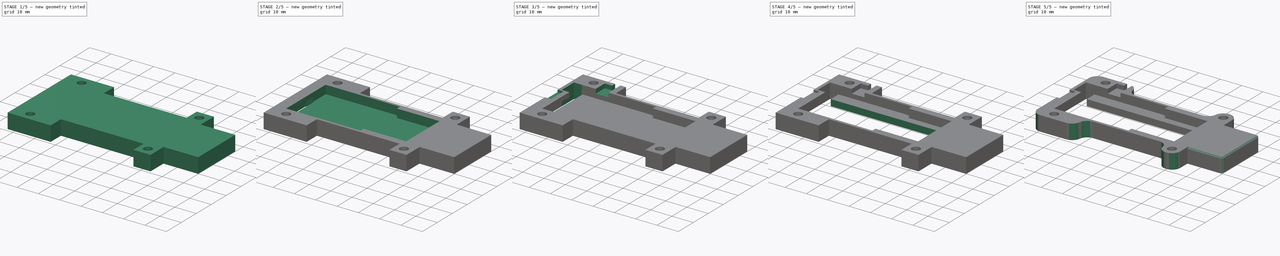
[diagram: build sequence overview — one tinted view per stage of 5, left to right]
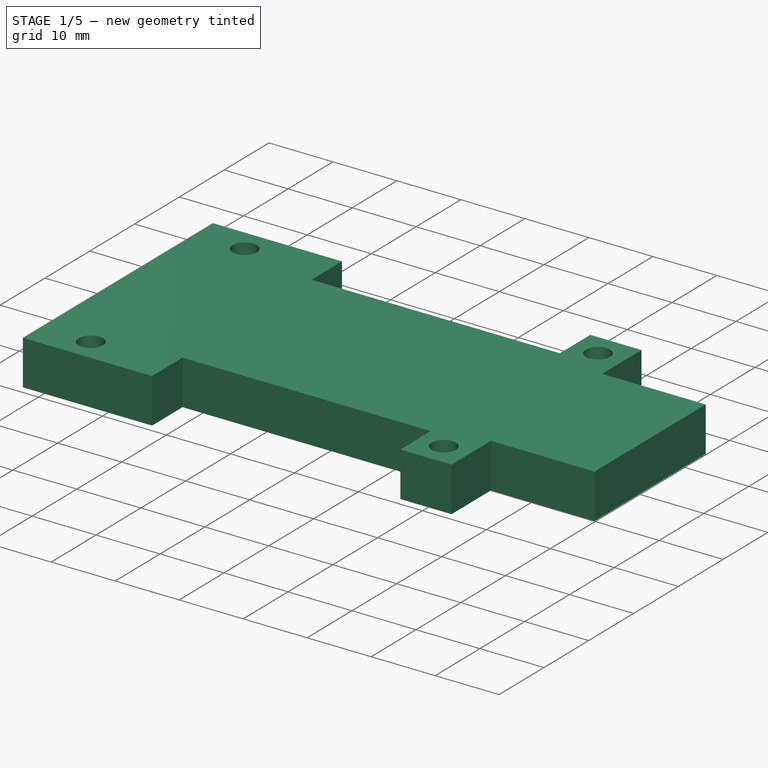
[diagram: stage 1 of 5 — iso view after this stage's code; geometry added in this stage tinted green]
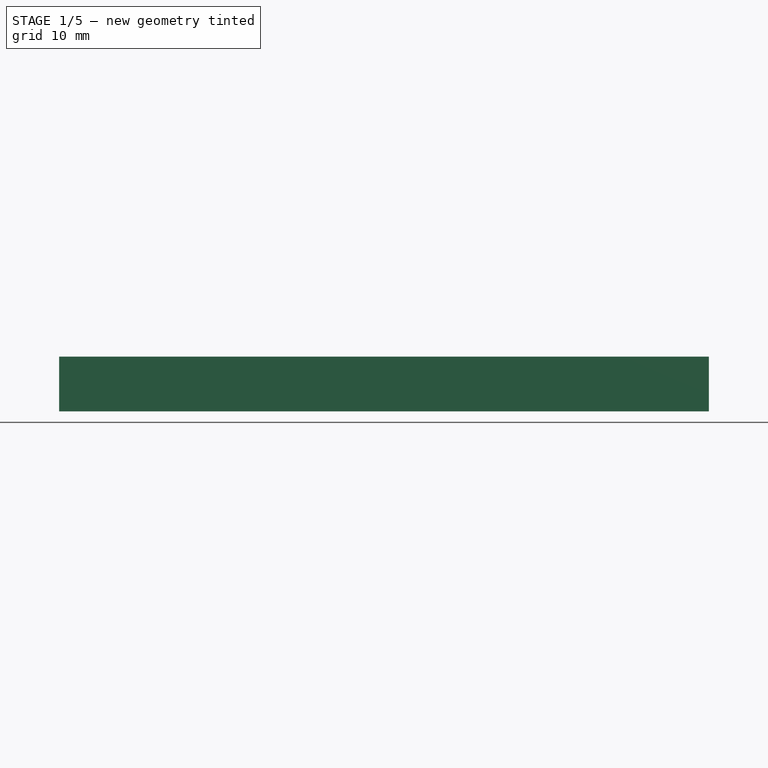
[diagram: stage 1 of 5 — front view after this stage's code; geometry added in this stage tinted green]
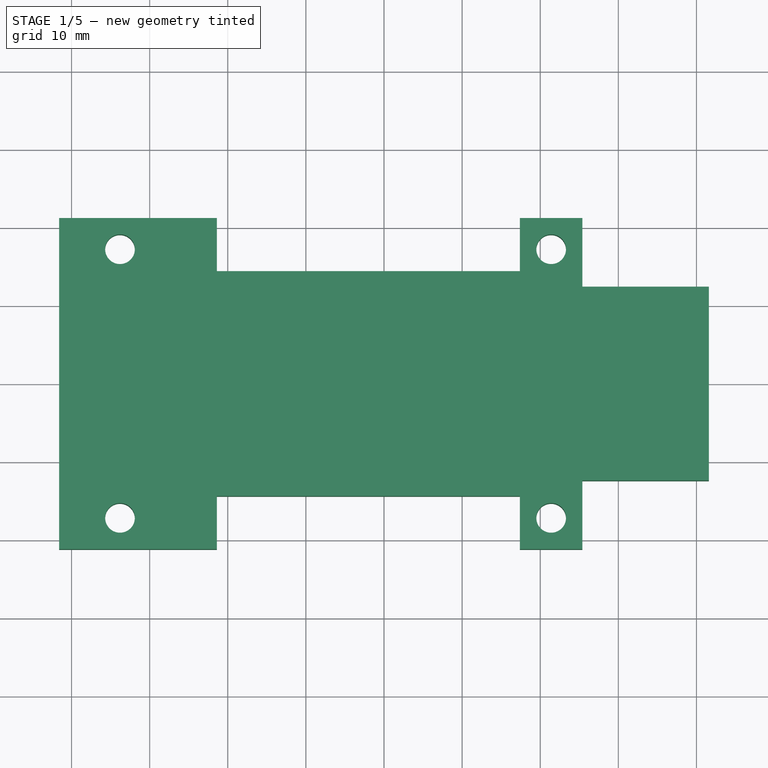
[diagram: stage 1 of 5 — top view after this stage's code; geometry added in this stage tinted green]
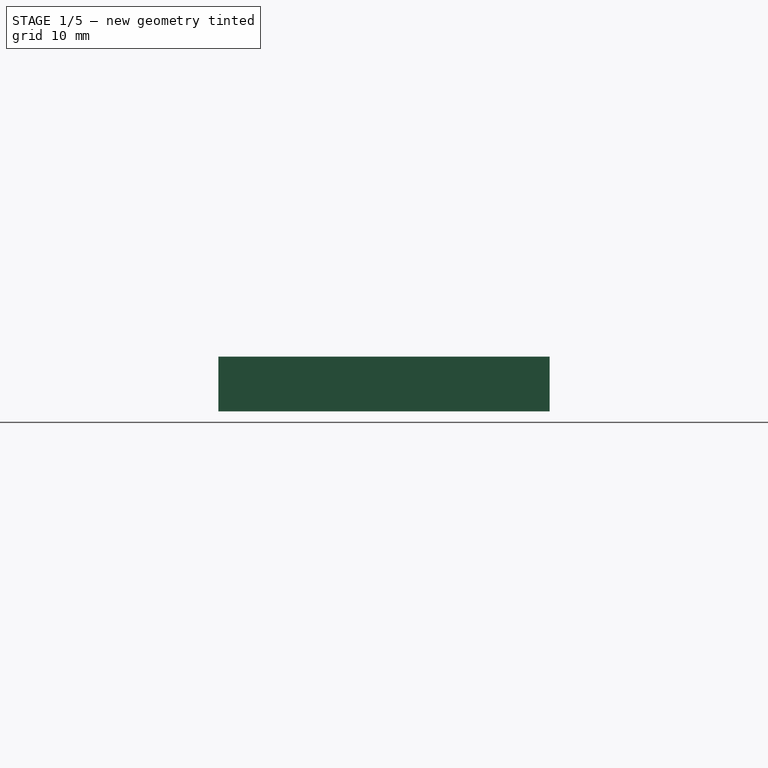
[diagram: stage 1 of 5 — right view after this stage's code; geometry added in this stage tinted green]
FCSTD DOCUMENT  (FreeCAD 0.21R33668 +26 (Git))
Label: spacerPlateV1.0
License: All rights reserved
LicenseURL: https://en.wikipedia.org/wiki/All_rights_reserved
objects: Sketcher::SketchObject×13, PartDesign::Pocket×9, PartDesign::Fillet×3, PartDesign::Plane×2, PartDesign::Chamfer×2, PartDesign::Pad×1, PartDesign::Body×1
note: 46 computed .brp shape members not serialized (recipe doc carries the construction recipe); baked Part::Feature solids carry a one-line shape summary decoded from their .brp

FEATURE [Sketcher::SketchObject] Sketch001
  FullyConstrained = true
  MapMode = 5
  Support = -> [XY_Plane]
  sketch-geometry (4):
    g0: LineSegment StartX=41.6 StartY=21.2 StartZ=0 EndX=-41.6 EndY=21.2 EndZ=0
    g1: LineSegment StartX=-41.6 StartY=21.2 StartZ=0 EndX=-41.6 EndY=-21.2 EndZ=0
    g2: LineSegment StartX=-41.6 StartY=-21.2 StartZ=0 EndX=41.6 EndY=-21.2 EndZ=0
    g3: LineSegment StartX=41.6 StartY=-21.2 StartZ=0 EndX=41.6 EndY=21.2 EndZ=0
  constraints (12):
    c: Coincident(g0,g1)
    c: Coincident(g1,g2)
    c: Coincident(g2,g3)
    c: Coincident(g3,g0)
    c: Horizontal(g0)
    c: Horizontal(g2)
    c: Vertical(g1)
    c: Vertical(g3)
    c: Distance(g2) = 83.2
    c: Distance(g3) = 42.4
    c: DistanceX(g-1,g2) = 41.6
    c: DistanceY(g-1,g0) = 21.2
FEATURE [PartDesign::Pad] Pad
  Direction = (0,0,1)
  Length = 7
  Length2 = 10
  Profile = -> Sketch001
  ReferenceAxis = -> Sketch001 [N_Axis]
  Type = 0
FEATURE [PartDesign::Plane] DatumPlane
  Length = 96.0996
  MapMode = 5
  Placement = pos=(0,0,7) rot=(0,0,1;0rad)
  ResizeMode = 0
  Support = -> [Pad]
  Width = 62.8996
FEATURE [Sketcher::SketchObject] Sketch002
  FullyConstrained = true
  MapMode = 5
  Placement = pos=(0,0,7) rot=(0,0,1;0rad)
  Support = -> [DatumPlane]
  sketch-geometry (4):
    g0: Circle CenterX=-33.8 CenterY=17.2 CenterZ=0 NormalX=0 NormalY=0 NormalZ=1 AngleXU=0 Radius=1.9
    g1: Circle CenterX=-33.8 CenterY=-17.2 CenterZ=0 NormalX=0 NormalY=0 NormalZ=1 AngleXU=0 Radius=1.9
    g2: Circle CenterX=21.4 CenterY=17.2 CenterZ=0 NormalX=0 NormalY=0 NormalZ=1 AngleXU=0 Radius=1.9
    g3: Circle CenterX=21.4 CenterY=-17.2 CenterZ=0 NormalX=0 NormalY=0 NormalZ=1 AngleXU=0 Radius=1.9
  constraints (10):
    c: DistanceX(g0,g-1) = 33.8
    c: DistanceX(g0,g2) = 55.2
    c: Diameter(g0) = 3.8
    c: DistanceY(g-1,g0) = 17.2
    c: Symmetric(g0,g1,g-1)
    c: Horizontal(g0,g2)
    c: Symmetric(g2,g3,g-1)
    c: Equal(g0,g1)
    c: Equal(g0,g2)
    c: Equal(g0,g3)
FEATURE [PartDesign::Pocket] Pocket
  BaseFeature = -> Pad
  Direction = (0,0,-1)
  Length = 0
  Length2 = 5
  Profile = -> Sketch002
  ReferenceAxis = -> Sketch002 [N_Axis]
  Type = 3
  UpToFace = -> Pad [Face5]
FEATURE [Sketcher::SketchObject] Sketch003
  FullyConstrained = true
  MapMode = 5
  Placement = pos=(0,0,7) rot=(0,0,1;0rad)
  Support = -> [DatumPlane]
  sketch-geometry (16):
    g0: LineSegment StartX=-21.4 StartY=21.2 StartZ=0 EndX=17.4 EndY=21.2 EndZ=0
    g1: LineSegment StartX=17.4 StartY=21.2 StartZ=0 EndX=17.4 EndY=14.4 EndZ=0
    g2: LineSegment StartX=17.4 StartY=14.4 StartZ=0 EndX=-21.4 EndY=14.4 EndZ=0
    g3: LineSegment StartX=-21.4 StartY=14.4 StartZ=0 EndX=-21.4 EndY=21.2 EndZ=0
    g4: LineSegment StartX=-21.4 StartY=-14.4 StartZ=0 EndX=17.4 EndY=-14.4 EndZ=0
    g5: LineSegment StartX=17.4 StartY=-14.4 StartZ=0 EndX=17.4 EndY=-21.2 EndZ=0
    g6: LineSegment StartX=17.4 StartY=-21.2 StartZ=0 EndX=-21.4 EndY=-21.2 EndZ=0
    g7: LineSegment StartX=-21.4 StartY=-21.2 StartZ=0 EndX=-21.4 EndY=-14.4 EndZ=0
    g8: LineSegment StartX=25.4 StartY=-12.4 StartZ=0 EndX=41.6 EndY=-12.4 EndZ=0
    g9: LineSegment StartX=41.6 StartY=-12.4 StartZ=0 EndX=41.6 EndY=-21.2 EndZ=0
    g10: LineSegment StartX=41.6 StartY=-21.2 StartZ=0 EndX=25.4 EndY=-21.2 EndZ=0
    g11: LineSegment StartX=25.4 StartY=-21.2 StartZ=0 EndX=25.4 EndY=-12.4 EndZ=0
    g12: LineSegment StartX=25.4 StartY=12.4 StartZ=0 EndX=41.6 EndY=12.4 EndZ=0
    g13: LineSegment StartX=41.6 StartY=12.4 StartZ=0 EndX=41.6 EndY=21.2 EndZ=0
    g14: LineSegment StartX=41.6 StartY=21.2 StartZ=0 EndX=25.4 EndY=21.2 EndZ=0
    g15: LineSegment StartX=25.4 StartY=21.2 StartZ=0 EndX=25.4 EndY=12.4 EndZ=0
  constraints (48):
    c: Coincident(g0,g1)
    c: Coincident(g1,g2)
    c: Coincident(g2,g3)
    c: Coincident(g3,g0)
    c: Horizontal(g0)
    c: Horizontal(g2)
    c: Vertical(g1)
    c: Vertical(g3)
    c: Coincident(g4,g5)
    c: Coincident(g5,g6)
    c: Coincident(g6,g7)
    c: Coincident(g7,g4)
    c: Horizontal(g4)
    c: Horizontal(g6)
    c: Vertical(g5)
    c: Vertical(g7)
    c: Coincident(g8,g9)
    c: Coincident(g9,g10)
    c: Coincident(g10,g11)
    c: Coincident(g11,g8)
    c: Horizontal(g8)
    c: Horizontal(g10)
    c: Vertical(g9)
    c: Vertical(g11)
    c: Coincident(g12,g13)
    c: Coincident(g13,g14)
    c: Coincident(g14,g15)
    c: Coincident(g15,g12)
    c: Horizontal(g12)
    c: Horizontal(g14)
    c: Vertical(g13)
    c: Vertical(g15)
    c: Distance(g3) = 6.8
    c: Distance(g13) = 8.8
    c: Equal(g13,g9)
    c: Equal(g3,g7)
    c: Distance(g12) = 16.2
    c: DistanceY(g-1,g2) = 14.4
    c: DistanceY(g4,g-1) = 14.4
    c: Distance(g2) = 38.8
    c: Equal(g4,g2)
    c: DistanceX(g2,g-1) = 21.4
    c: Vertical(g2,g4)
    c: DistanceX(g-1,g12) = 25.4
    c: Horizontal(g0,g14)
    c: Horizontal(g5,g10)
    c: Equal(g12,g8)
    c: Vertical(g8,g12)
FEATURE [PartDesign::Pocket] Pocket001
  BaseFeature = -> Pocket
  Direction = (0,0,-1)
  Length = 0
  Length2 = 5
  Profile = -> Sketch003
  ReferenceAxis = -> Sketch003 [N_Axis]
  Type = 3
  UpToFace = -> Pocket [Face4]
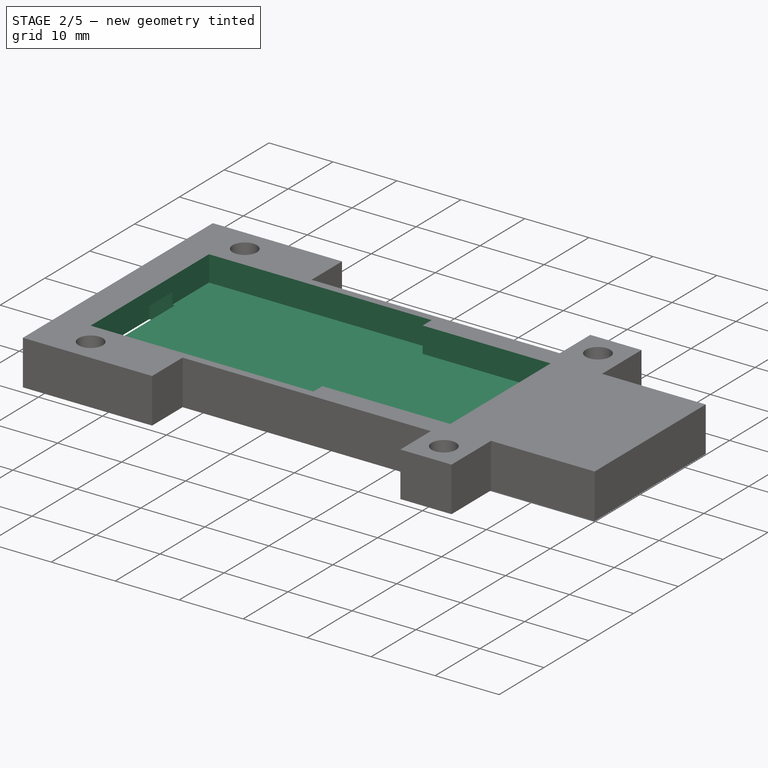
[diagram: stage 2 of 5 — iso view after this stage's code; geometry added in this stage tinted green]
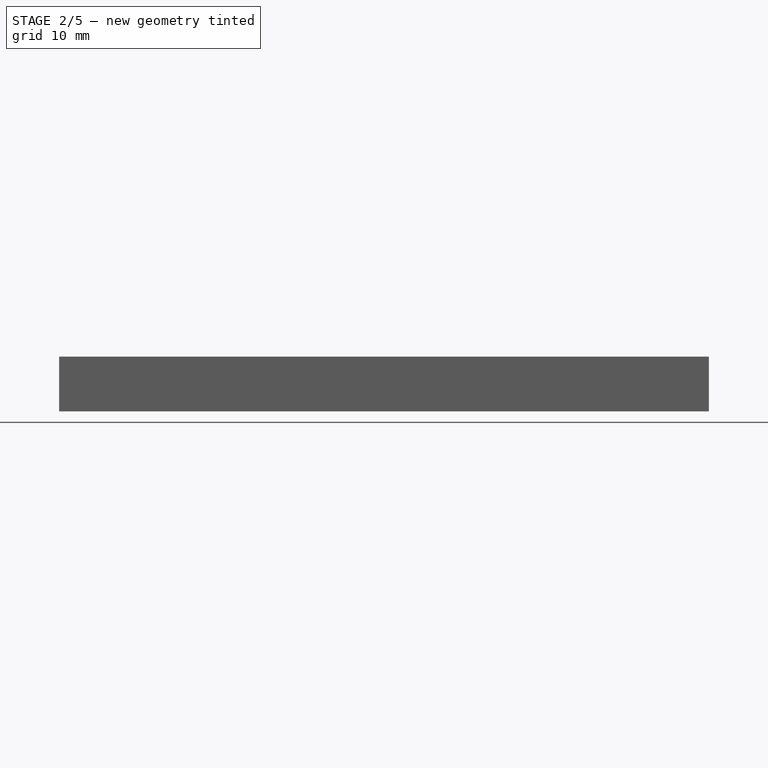
[diagram: stage 2 of 5 — front view after this stage's code; geometry added in this stage tinted green]
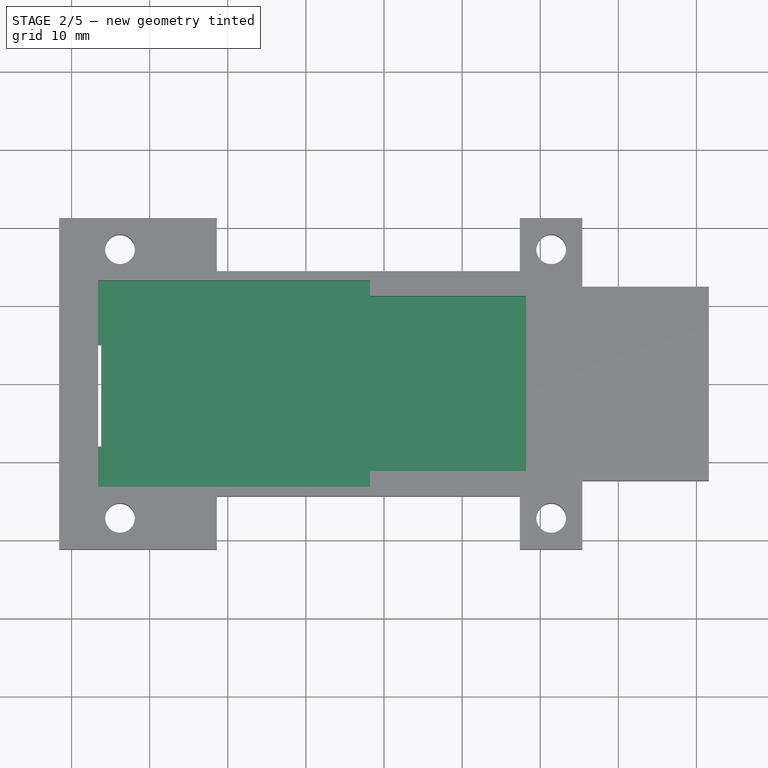
[diagram: stage 2 of 5 — top view after this stage's code; geometry added in this stage tinted green]
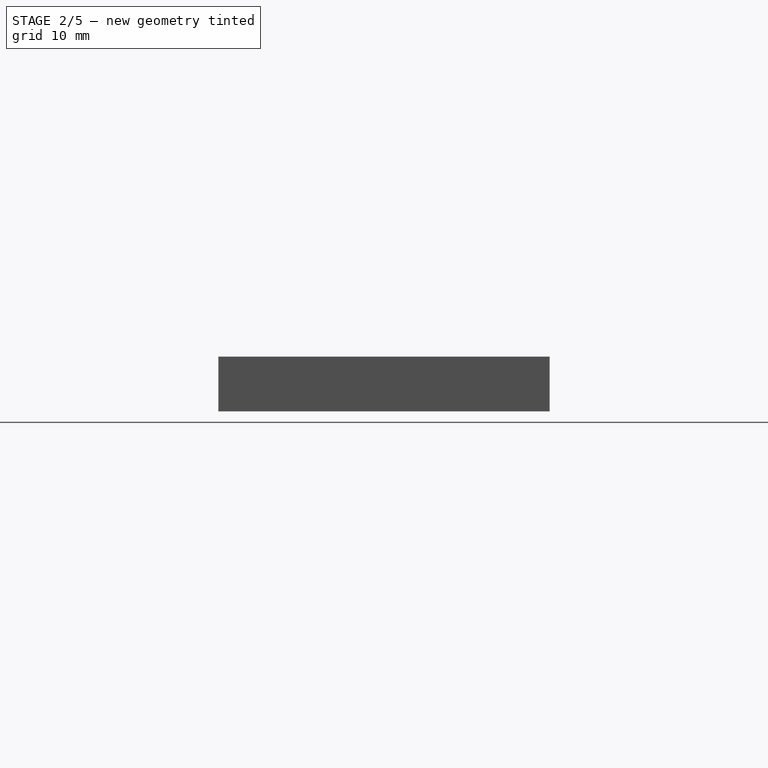
[diagram: stage 2 of 5 — right view after this stage's code; geometry added in this stage tinted green]
FEATURE [Sketcher::SketchObject] Sketch
  FullyConstrained = true
  MapMode = 5
  Support = -> [XY_Plane]
  sketch-geometry (25):
    g0: LineSegment StartX=41.6 StartY=-21.2 StartZ=0 EndX=41.6 EndY=21.2 EndZ=0
    g1: LineSegment StartX=41.6 StartY=21.2 StartZ=0 EndX=-41.6 EndY=21.2 EndZ=0
    g2: LineSegment StartX=-41.6 StartY=21.2 StartZ=0 EndX=-41.6 EndY=-21.2 EndZ=0
    g3: LineSegment StartX=-41.6 StartY=-21.2 StartZ=0 EndX=41.6 EndY=-21.2 EndZ=0
    g4: GeomPoint X=0 Y=0 Z=0
    g5: Circle CenterX=-33.8 CenterY=17.2 CenterZ=0 NormalX=0 NormalY=0 NormalZ=1 AngleXU=0 Radius=2.4
    g6: Circle CenterX=-33.8 CenterY=-17.2 CenterZ=0 NormalX=0 NormalY=0 NormalZ=1 AngleXU=0 Radius=2.4
    g7: Circle CenterX=21.4 CenterY=-17.2 CenterZ=0 NormalX=0 NormalY=0 NormalZ=1 AngleXU=0 Radius=2.4
    g8: Circle CenterX=21.4 CenterY=17.2 CenterZ=0 NormalX=0 NormalY=0 NormalZ=1 AngleXU=0 Radius=2.4
    g9: LineSegment StartX=-21.4 StartY=21.2 StartZ=0 EndX=17.4 EndY=21.2 EndZ=0
    g10: LineSegment StartX=17.4 StartY=21.2 StartZ=0 EndX=17.4 EndY=14.4 EndZ=0
    g11: LineSegment StartX=17.4 StartY=14.4 StartZ=0 EndX=-21.4 EndY=14.4 EndZ=0
    g12: LineSegment StartX=-21.4 StartY=14.4 StartZ=0 EndX=-21.4 EndY=21.2 EndZ=0
    g13: LineSegment StartX=-21.4 StartY=-21.2 StartZ=0 EndX=17.4 EndY=-21.2 EndZ=0
    g14: LineSegment StartX=17.4 StartY=-21.2 StartZ=0 EndX=17.4 EndY=-14.4 EndZ=0
    g15: LineSegment StartX=17.4 StartY=-14.4 StartZ=0 EndX=-21.4 EndY=-14.4 EndZ=0
    g16: LineSegment StartX=-21.4 StartY=-14.4 StartZ=0 EndX=-21.4 EndY=-21.2 EndZ=0
    g17: LineSegment StartX=41.6 StartY=21.2 StartZ=0 EndX=25.4 EndY=21.2 EndZ=0
    g18: LineSegment StartX=25.4 StartY=21.2 StartZ=0 EndX=25.4 EndY=14.4 EndZ=0
    g19: LineSegment StartX=25.4 StartY=14.4 StartZ=0 EndX=41.6 EndY=14.4 EndZ=0
    g20: LineSegment StartX=41.6 StartY=14.4 StartZ=0 EndX=41.6 EndY=21.2 EndZ=0
    g21: LineSegment StartX=41.6 StartY=-21.2 StartZ=0 EndX=25.4 EndY=-21.2 EndZ=0
    g22: LineSegment StartX=25.4 StartY=-21.2 StartZ=0 EndX=25.4 EndY=-14.4 EndZ=0
    g23: LineSegment StartX=25.4 StartY=-14.4 StartZ=0 EndX=41.6 EndY=-14.4 EndZ=0
    g24: LineSegment StartX=41.6 StartY=-14.4 StartZ=0 EndX=41.6 EndY=-21.2 EndZ=0
  constraints (69):
    c: Coincident(g0,g1)
    c: Coincident(g1,g2)
    c: Coincident(g2,g3)
    c: Coincident(g3,g0)
    c: Horizontal(g1)
    c: Horizontal(g3)
    c: Vertical(g0)
    c: Vertical(g2)
    c: Symmetric(g1,g0,g4)
    c: Coincident(g4,g-1)
    c: Distance(g1) = 83.2
    c: Distance(g2) = 42.4
    c: DistanceX(g1,g5) = 7.8
    c: DistanceY(g5,g1) = 4
    c: Diameter(g5) = 4.8
    c: Symmetric(g5,g6,g-1)
    c: Horizontal(g5,g8)
    c: Horizontal(g6,g7)
    c: Vertical(g8,g7)
    c: DistanceX(g5,g8) = 55.2
    c: Equal(g5,g6)
    c: Equal(g5,g8)
    c: Equal(g5,g7)
    c: Coincident(g9,g10)
    c: Coincident(g10,g11)
    c: Coincident(g11,g12)
    c: Coincident(g12,g9)
    c: Horizontal(g9)
    c: Horizontal(g11)
    c: Vertical(g10)
    c: Vertical(g12)
    c: PointOnObject(g9,g1)
    c: Coincident(g13,g14)
    c: Coincident(g14,g15)
    c: Coincident(g15,g16)
    c: Coincident(g16,g13)
    c: Horizontal(g13)
    c: Horizontal(g15)
    c: Vertical(g14)
    c: Vertical(g16)
    c: PointOnObject(g13,g3)
    c: Distance(g15) = 38.8
    c: Distance(g16) = 6.8
    c: Vertical(g11,g15)
    c: Equal(g16,g12)
    c: Equal(g15,g11)
    c: Coincident(g17,g18)
    c: Coincident(g18,g19)
    c: Coincident(g19,g20)
    c: Coincident(g20,g17)
    c: Horizontal(g17)
    c: Horizontal(g19)
    c: Vertical(g18)
    c: Vertical(g20)
    c: Coincident(g17,g0)
    c: Coincident(g21,g22)
    c: Coincident(g22,g23)
    c: Coincident(g23,g24)
    c: Coincident(g24,g21)
    c: Horizontal(g21)
    c: Horizontal(g23)
    c: Vertical(g22)
    c: Vertical(g24)
    c: Coincident(g21,g0)
    c: Distance(g19) = 16.2
    c: Distance(g18) = 6.8
    c: DistanceX(g15,g4) = 21.4
    c: Equal(g18,g22)
    c: Equal(g19,g23)
FEATURE [PartDesign::Plane] DatumPlane001
  Length = 96.0996
  MapMode = 5
  Placement = pos=(0,0,0) rot=(1,0,0;3.14159rad)
  ResizeMode = 0
  Support = -> [Pocket001]
  Width = 62.8996
FEATURE [Sketcher::SketchObject] Sketch004
  FullyConstrained = true
  MapMode = 5
  Placement = pos=(0,0,0) rot=(1,0,0;3.14159rad)
  Support = -> [DatumPlane001]
  sketch-geometry (4):
    g0: LineSegment StartX=18.2 StartY=8 StartZ=0 EndX=40.4 EndY=8 EndZ=0
    g1: LineSegment StartX=40.4 StartY=8 StartZ=0 EndX=40.4 EndY=-8 EndZ=0
    g2: LineSegment StartX=40.4 StartY=-8 StartZ=0 EndX=18.2 EndY=-8 EndZ=0
    g3: LineSegment StartX=18.2 StartY=-8 StartZ=0 EndX=18.2 EndY=8 EndZ=0
  constraints (12):
    c: Coincident(g0,g1)
    c: Coincident(g1,g2)
    c: Coincident(g2,g3)
    c: Coincident(g3,g0)
    c: Horizontal(g0)
    c: Horizontal(g2)
    c: Vertical(g1)
    c: Vertical(g3)
    c: Distance(g3) = 16
    c: Distance(g2) = 22.2
    c: DistanceX(g-1,g0) = 40.4
    c: DistanceY(g-1,g0) = 8
FEATURE [PartDesign::Pocket] Pocket002
  BaseFeature = -> Pocket001
  Direction = (0,0,1)
  Length = 5.8
  Length2 = 5
  Profile = -> Sketch004
  ReferenceAxis = -> Sketch004 [N_Axis]
  Type = 0
FEATURE [Sketcher::SketchObject] Sketch005
  FullyConstrained = true
  MapMode = 5
  Placement = pos=(0,0,0) rot=(1,0,0;3.14159rad)
  Support = -> [DatumPlane001]
  sketch-geometry (5):
    g0: LineSegment StartX=-36.2 StartY=-5 StartZ=0 EndX=-36.2 EndY=8 EndZ=0
    g1: LineSegment StartX=-36.2 StartY=8 StartZ=0 EndX=-40.2 EndY=8 EndZ=0
    g2: LineSegment StartX=-40.2 StartY=8 StartZ=0 EndX=-40.2 EndY=-5 EndZ=0
    g3: LineSegment StartX=-40.2 StartY=-5 StartZ=0 EndX=-36.2 EndY=-5 EndZ=0
    g4: GeomPoint X=-38.2 Y=1.5 Z=0
  constraints (13):
    c: Coincident(g0,g1)
    c: Coincident(g1,g2)
    c: Coincident(g2,g3)
    c: Coincident(g3,g0)
    c: Horizontal(g1)
    c: Horizontal(g3)
    c: Vertical(g0)
    c: Vertical(g2)
    c: Symmetric(g1,g0,g4)
    c: DistanceX(g0,g-1) = 36.2
    c: Distance(g1) = 4
    c: DistanceY(g-1,g0) = 8
    c: DistanceY(g2,g-1) = 5
FEATURE [PartDesign::Pocket] Pocket003
  BaseFeature = -> Pocket002
  Direction = (0,0,1)
  Length = 4.8
  Length2 = 5
  Profile = -> Sketch005
  ReferenceAxis = -> Sketch005 [N_Axis]
  Type = 0
FEATURE [Sketcher::SketchObject] Sketch006
  FullyConstrained = true
  MapMode = 5
  Placement = pos=(0,0,7) rot=(0,0,1;0rad)
  Support = -> [DatumPlane]
  sketch-geometry (14):
    g0: GeomPoint X=-36.6 Y=13.2 Z=0
    g1: GeomPoint X=-1.8 Y=13.2 Z=0
    g2: GeomPoint X=-1.8 Y=11.2 Z=0
    g3: GeomPoint X=18.2 Y=11.2 Z=0
    g4: GeomPoint X=-1.8 Y=-11.2 Z=0
    g5: GeomPoint X=-36.6 Y=-13.2 Z=0
    g6: LineSegment StartX=-36.6 StartY=13.2 StartZ=0 EndX=-1.8 EndY=13.2 EndZ=0
    g7: LineSegment StartX=-1.8 StartY=13.2 StartZ=0 EndX=-1.8 EndY=11.2 EndZ=0
    g8: LineSegment StartX=-1.8 StartY=11.2 StartZ=0 EndX=18.2 EndY=11.2 EndZ=0
    g9: LineSegment StartX=18.2 StartY=-11.2 StartZ=0 EndX=-1.8 EndY=-11.2 EndZ=0
    g10: LineSegment StartX=-1.8 StartY=-13.2 StartZ=0 EndX=-36.6 EndY=-13.2 EndZ=0
    g11: LineSegment StartX=-36.6 StartY=-13.2 StartZ=0 EndX=-36.6 EndY=13.2 EndZ=0
    g12: LineSegment StartX=-1.8 StartY=-11.2 StartZ=0 EndX=-1.8 EndY=-13.2 EndZ=0
    g13: LineSegment StartX=18.2 StartY=11.2 StartZ=0 EndX=18.2 EndY=-11.2 EndZ=0
  constraints (30):
    c: Coincident(g6,g0)
    c: Coincident(g6,g1)
    c: Horizontal(g6)
    c: Coincident(g7,g6)
    c: Coincident(g7,g2)
    c: Vertical(g7)
    c: Coincident(g8,g7)
    c: Coincident(g8,g3)
    c: Horizontal(g8)
    c: Coincident(g9,g4)
    c: Horizontal(g9)
    c: Coincident(g10,g5)
    c: Horizontal(g10)
    c: Coincident(g11,g10)
    c: Coincident(g11,g6)
    c: Vertical(g11)
    c: Distance(g6) = 34.8
    c: Equal(g6,g10)
    c: Coincident(g12,g9)
    c: Coincident(g12,g10)
    c: Vertical(g12)
    c: Coincident(g13,g8)
    c: Coincident(g13,g9)
    c: Vertical(g13)
    c: Distance(g11) = 26.4
    c: Distance(g13) = 22.4
    c: Equal(g12,g7)
    c: Distance(g8) = 20
    c: DistanceX(g10,g-1) = 36.6
    c: DistanceY(g9,g-1) = 11.2
FEATURE [PartDesign::Pocket] Pocket004
  BaseFeature = -> Pocket003
  Direction = (0,0,-1)
  Length = 4
  Length2 = 5
  Profile = -> Sketch006
  ReferenceAxis = -> Sketch006 [N_Axis]
  Type = 0
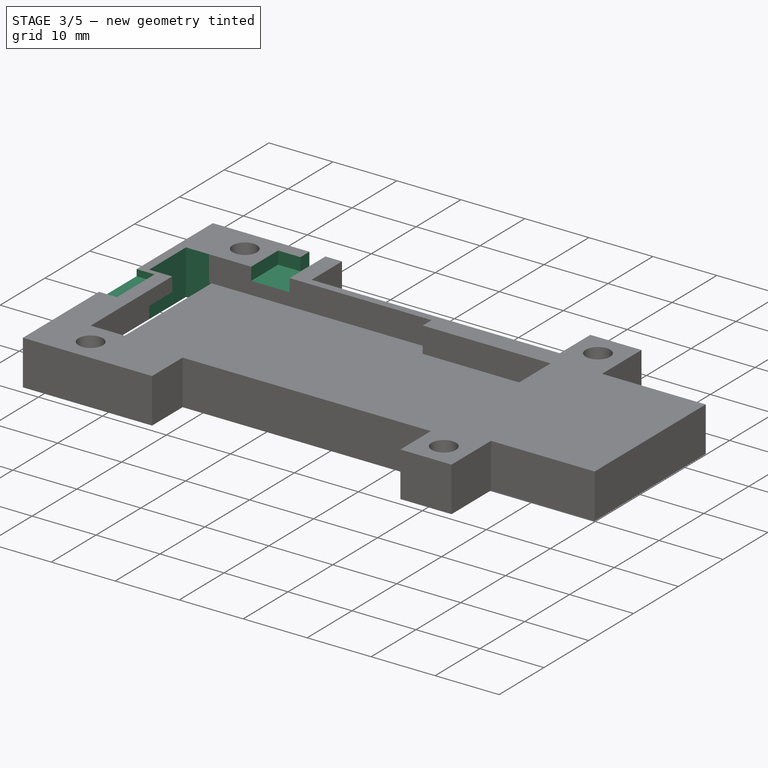
[diagram: stage 3 of 5 — iso view after this stage's code; geometry added in this stage tinted green]
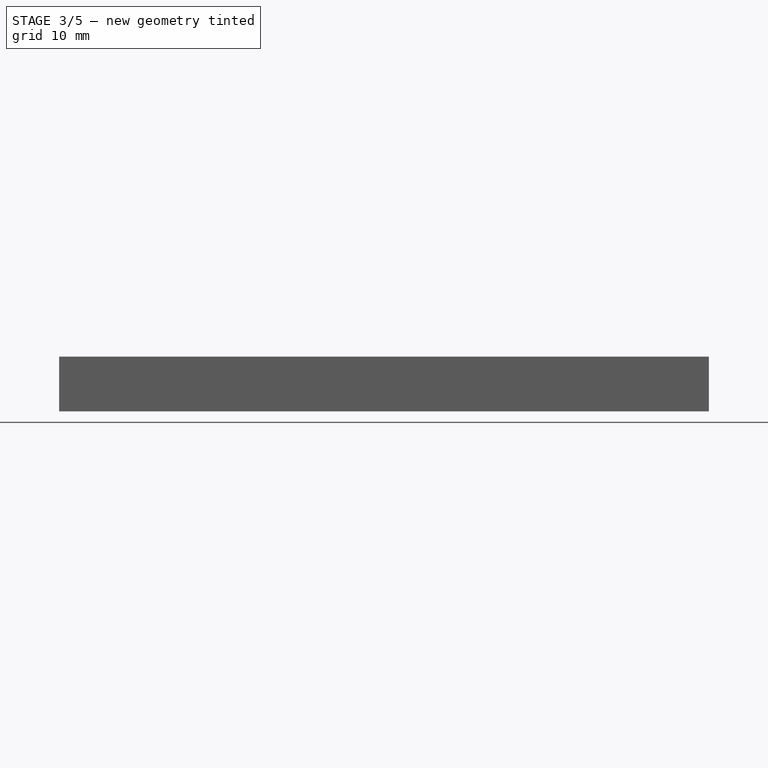
[diagram: stage 3 of 5 — front view after this stage's code; geometry added in this stage tinted green]
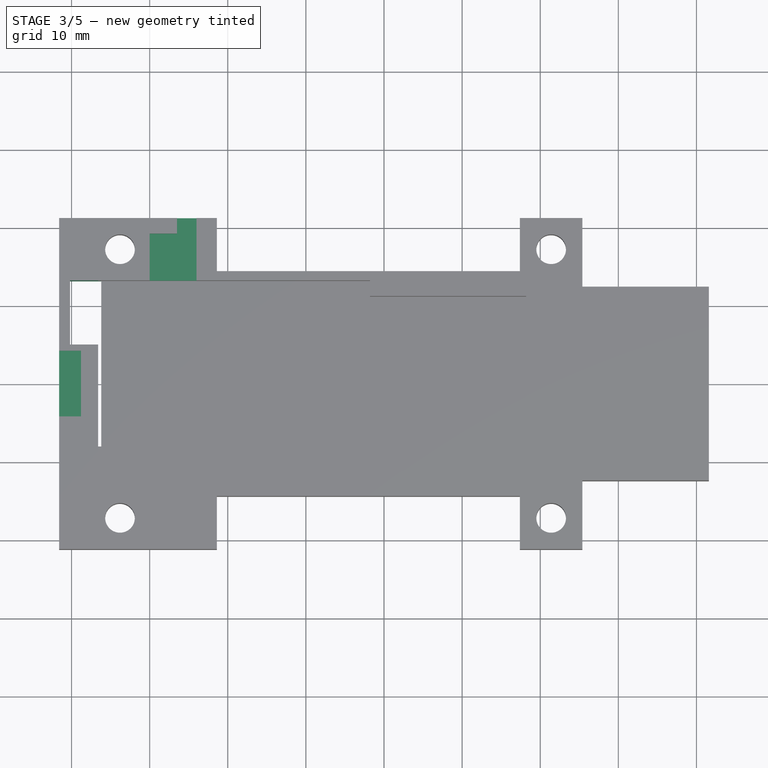
[diagram: stage 3 of 5 — top view after this stage's code; geometry added in this stage tinted green]
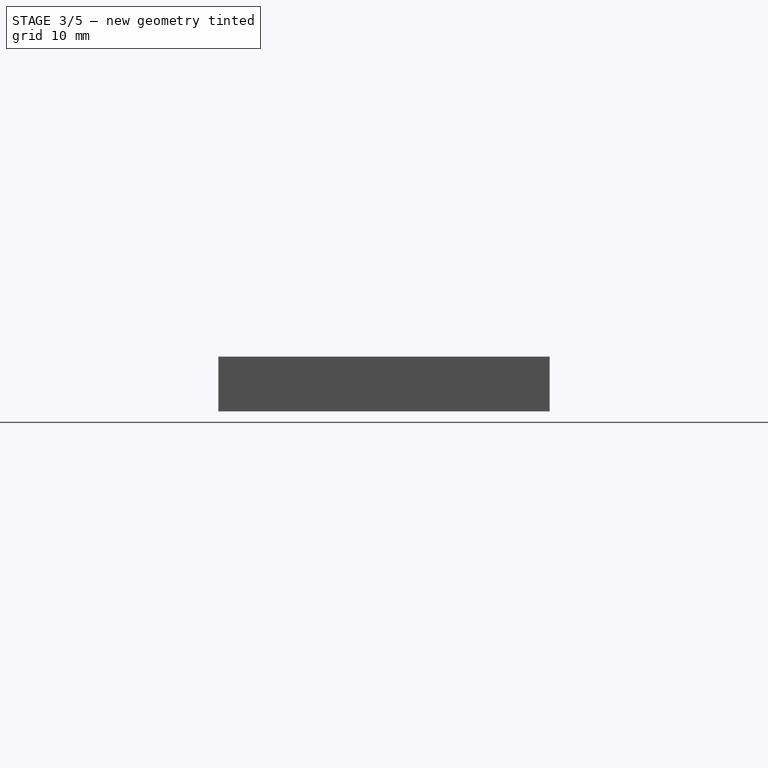
[diagram: stage 3 of 5 — right view after this stage's code; geometry added in this stage tinted green]
FEATURE [Sketcher::SketchObject] Sketch007
  FullyConstrained = true
  MapMode = 5
  Placement = pos=(0,0,7) rot=(0,0,1;0rad)
  Support = -> [Pocket004]
  sketch-geometry (4):
    g0: LineSegment StartX=41.6 StartY=12.4 StartZ=0 EndX=25.4 EndY=12.4 EndZ=0
    g1: LineSegment StartX=25.4 StartY=12.4 StartZ=0 EndX=25.4 EndY=-12.4 EndZ=0
    g2: LineSegment StartX=25.4 StartY=-12.4 StartZ=0 EndX=41.6 EndY=-12.4 EndZ=0
    g3: LineSegment StartX=41.6 StartY=-12.4 StartZ=0 EndX=41.6 EndY=12.4 EndZ=0
  constraints (12):
    c: Coincident(g0,g1)
    c: Coincident(g1,g2)
    c: Coincident(g2,g3)
    c: Coincident(g3,g0)
    c: Horizontal(g0)
    c: Horizontal(g2)
    c: Vertical(g1)
    c: Vertical(g3)
    c: DistanceX(g-1,g1) = 25.4
    c: Distance(g2) = 16.2
    c: DistanceY(g-1,g0) = 12.4
    c: Distance(g3) = 24.8
FEATURE [Sketcher::SketchObject] Sketch008
  FullyConstrained = true
  MapMode = 5
  Placement = pos=(0,0,0) rot=(1,0,0;3.14159rad)
  Support = -> [DatumPlane001]
  sketch-geometry (4):
    g0: LineSegment StartX=-40.2 StartY=-13.2 StartZ=0 EndX=-36.2 EndY=-13.2 EndZ=0
    g1: LineSegment StartX=-36.2 StartY=-13.2 StartZ=0 EndX=-36.2 EndY=-5 EndZ=0
    g2: LineSegment StartX=-36.2 StartY=-5 StartZ=0 EndX=-40.2 EndY=-5 EndZ=0
    g3: LineSegment StartX=-40.2 StartY=-5 StartZ=0 EndX=-40.2 EndY=-13.2 EndZ=0
  constraints (12):
    c: Coincident(g0,g1)
    c: Coincident(g1,g2)
    c: Coincident(g2,g3)
    c: Coincident(g3,g0)
    c: Horizontal(g0)
    c: Horizontal(g2)
    c: Vertical(g1)
    c: Vertical(g3)
    c: Distance(g0) = 4
    c: DistanceX(g1,g-1) = 36.2
    c: DistanceY(g0,g-1) = 13.2
    c: DistanceY(g1,g-1) = 5
FEATURE [PartDesign::Pocket] Pocket006
  BaseFeature = -> Pocket004
  Direction = (0,0,1)
  Length = 0
  Length2 = 5
  Profile = -> Sketch008
  ReferenceAxis = -> Sketch008 [N_Axis]
  Type = 3
  UpToFace = -> Pocket004 [Face4]
FEATURE [Sketcher::SketchObject] Sketch009
  FullyConstrained = true
  MapMode = 5
  Placement = pos=(0,0,7) rot=(0,0,1;0rad)
  Support = -> [DatumPlane]
  sketch-geometry (4):
    g0: LineSegment StartX=-41.6 StartY=4.2 StartZ=0 EndX=-38.8 EndY=4.2 EndZ=0
    g1: LineSegment StartX=-38.8 StartY=4.2 StartZ=0 EndX=-38.8 EndY=-4.2 EndZ=0
    g2: LineSegment StartX=-38.8 StartY=-4.2 StartZ=0 EndX=-41.6 EndY=-4.2 EndZ=0
    g3: LineSegment StartX=-41.6 StartY=-4.2 StartZ=0 EndX=-41.6 EndY=4.2 EndZ=0
  constraints (12):
    c: Coincident(g0,g1)
    c: Coincident(g1,g2)
    c: Coincident(g2,g3)
    c: Coincident(g3,g0)
    c: Horizontal(g0)
    c: Horizontal(g2)
    c: Vertical(g1)
    c: Vertical(g3)
    c: Distance(g3) = 8.4
    c: DistanceX(g0,g-1) = 38.8
    c: DistanceX(g0,g-1) = 41.6
    c: DistanceY(g1,g-1) = 4.2
FEATURE [PartDesign::Pocket] Pocket007
  BaseFeature = -> Pocket006
  Direction = (0,0,-1)
  Length = 1
  Length2 = 5
  Profile = -> Sketch009
  ReferenceAxis = -> Sketch009 [N_Axis]
  Type = 0
FEATURE [Sketcher::SketchObject] Sketch010
  FullyConstrained = true
  MapMode = 5
  Placement = pos=(0,0,7) rot=(0,0,1;0rad)
  Support = -> [DatumPlane]
  sketch-geometry (4):
    g0: LineSegment StartX=-40.6 StartY=13.6 StartZ=0 EndX=-37.8 EndY=13.6 EndZ=0
    g1: LineSegment StartX=-37.8 StartY=13.6 StartZ=0 EndX=-37.8 EndY=4.6 EndZ=0
    g2: LineSegment StartX=-37.8 StartY=4.6 StartZ=0 EndX=-40.6 EndY=4.6 EndZ=0
    g3: LineSegment StartX=-40.6 StartY=4.6 StartZ=0 EndX=-40.6 EndY=13.6 EndZ=0
  constraints (12):
    c: Coincident(g0,g1)
    c: Coincident(g1,g2)
    c: Coincident(g2,g3)
    c: Coincident(g3,g0)
    c: Horizontal(g0)
    c: Horizontal(g2)
    c: Vertical(g1)
    c: Vertical(g3)
    c: Distance(g3) = 9
    c: DistanceX(g0,g-1) = 40.6
    c: DistanceY(g-1,g1) = 4.6
    c: Distance(g0) = 2.8
FEATURE [Sketcher::SketchObject] Sketch011
  FullyConstrained = true
  MapMode = 5
  Placement = pos=(0,0,7) rot=(0,0,1;0rad)
  Support = -> [DatumPlane]
  sketch-geometry (6):
    g0: LineSegment StartX=-30 StartY=13.2 StartZ=0 EndX=-24 EndY=13.2 EndZ=0
    g1: LineSegment StartX=-24 StartY=13.2 StartZ=0 EndX=-24 EndY=21.2 EndZ=0
    g2: LineSegment StartX=-24 StartY=21.2 StartZ=0 EndX=-26.5 EndY=21.2 EndZ=0
    g3: LineSegment StartX=-26.5 StartY=21.2 StartZ=0 EndX=-26.5 EndY=19.2 EndZ=0
    g4: LineSegment StartX=-26.5 StartY=19.2 StartZ=0 EndX=-30 EndY=19.2 EndZ=0
    g5: LineSegment StartX=-30 StartY=19.2 StartZ=0 EndX=-30 EndY=13.2 EndZ=0
  constraints (18):
    c: Horizontal(g0)
    c: Coincident(g1,g0)
    c: Vertical(g1)
    c: Coincident(g2,g1)
    c: Horizontal(g2)
    c: Coincident(g3,g2)
    c: Vertical(g3)
    c: Coincident(g4,g3)
    c: Horizontal(g4)
    c: Coincident(g5,g4)
    c: Coincident(g5,g0)
    c: Vertical(g4,g0)
    c: Distance(g1) = 8
    c: Distance(g5) = 6
    c: Distance(g2) = 2.5
    c: Distance(g0) = 6
    c: DistanceY(g-1,g0) = 13.2
    c: DistanceX(g0,g-1) = 24
FEATURE [PartDesign::Pocket] Pocket008
  BaseFeature = -> Pocket007
  Direction = (0,0,-1)
  Length = 2
  Length2 = 5
  Profile = -> Sketch011
  ReferenceAxis = -> Sketch011 [N_Axis]
  Type = 0
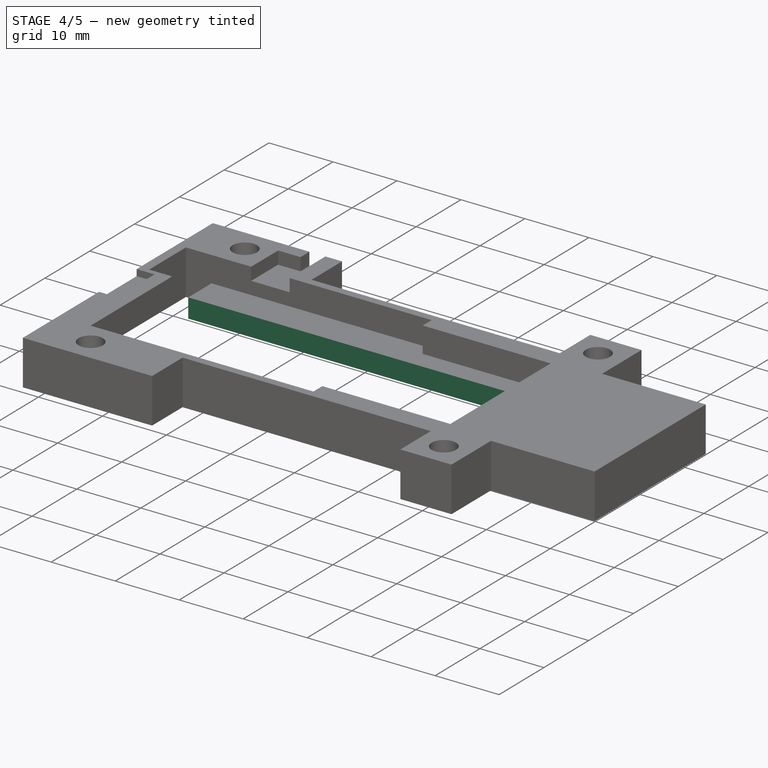
[diagram: stage 4 of 5 — iso view after this stage's code; geometry added in this stage tinted green]
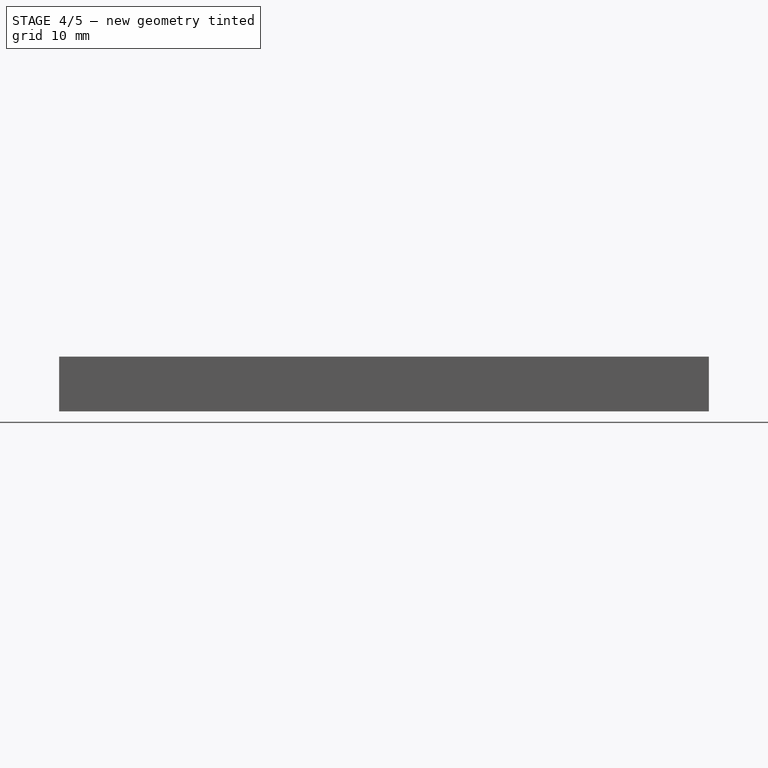
[diagram: stage 4 of 5 — front view after this stage's code; geometry added in this stage tinted green]
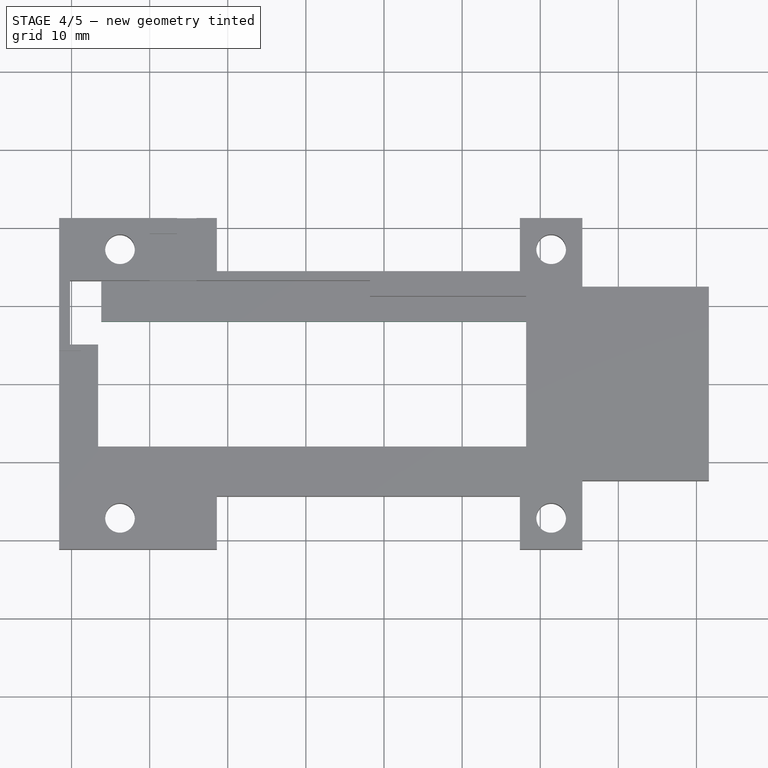
[diagram: stage 4 of 5 — top view after this stage's code; geometry added in this stage tinted green]
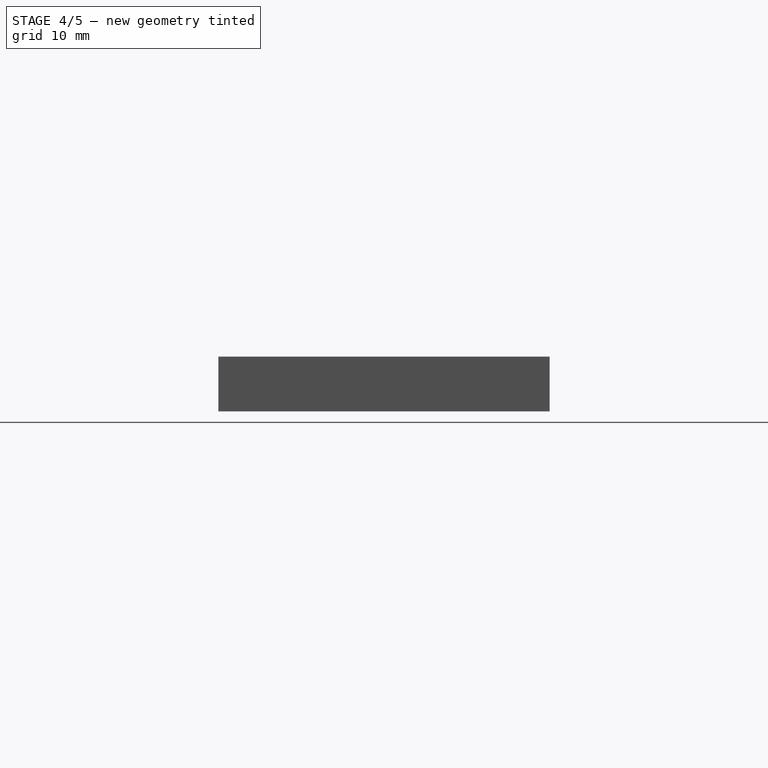
[diagram: stage 4 of 5 — right view after this stage's code; geometry added in this stage tinted green]
FEATURE [Sketcher::SketchObject] Sketch012
  FullyConstrained = true
  MapMode = 5
  Placement = pos=(0,0,0) rot=(1,0,0;3.14159rad)
  Support = -> [DatumPlane001]
  sketch-geometry (4):
    g0: LineSegment StartX=18.2 StartY=8 StartZ=0 EndX=-36.2 EndY=8 EndZ=0
    g1: LineSegment StartX=-36.2 StartY=8 StartZ=0 EndX=-36.2 EndY=-8 EndZ=0
    g2: LineSegment StartX=-36.2 StartY=-8 StartZ=0 EndX=18.2 EndY=-8 EndZ=0
    g3: LineSegment StartX=18.2 StartY=-8 StartZ=0 EndX=18.2 EndY=8 EndZ=0
  constraints (12):
    c: Coincident(g0,g1)
    c: Coincident(g1,g2)
    c: Coincident(g2,g3)
    c: Coincident(g3,g0)
    c: Horizontal(g0)
    c: Horizontal(g2)
    c: Vertical(g1)
    c: Vertical(g3)
    c: Distance(g2) = 54.4
    c: Distance(g1) = 16
    c: DistanceY(g-1,g0) = 8
    c: DistanceX(g-1,g0) = 18.2
FEATURE [PartDesign::Pocket] Pocket009
  BaseFeature = -> Pocket008
  Direction = (0,0,1)
  Length = 3
  Length2 = 5
  Profile = -> Sketch012
  ReferenceAxis = -> Sketch012 [N_Axis]
  Type = 0
FEATURE [PartDesign::Chamfer] Chamfer
  Angle = 60
  Base = -> Pocket009 [Edge106,Edge103,Edge101]
  BaseFeature = -> Pocket009
  ChamferType = 2
  FlipDirection = false
  Size = 2.8
  Size2 = 1
  SupportTransform = false
  UseAllEdges = false
FEATURE [PartDesign::Chamfer] Chamfer001
  Angle = 60
  Base = -> Chamfer [Edge111]
  BaseFeature = -> Chamfer
  ChamferType = 2
  FlipDirection = false
  Size = 2
  Size2 = 1
  SupportTransform = false
  UseAllEdges = false
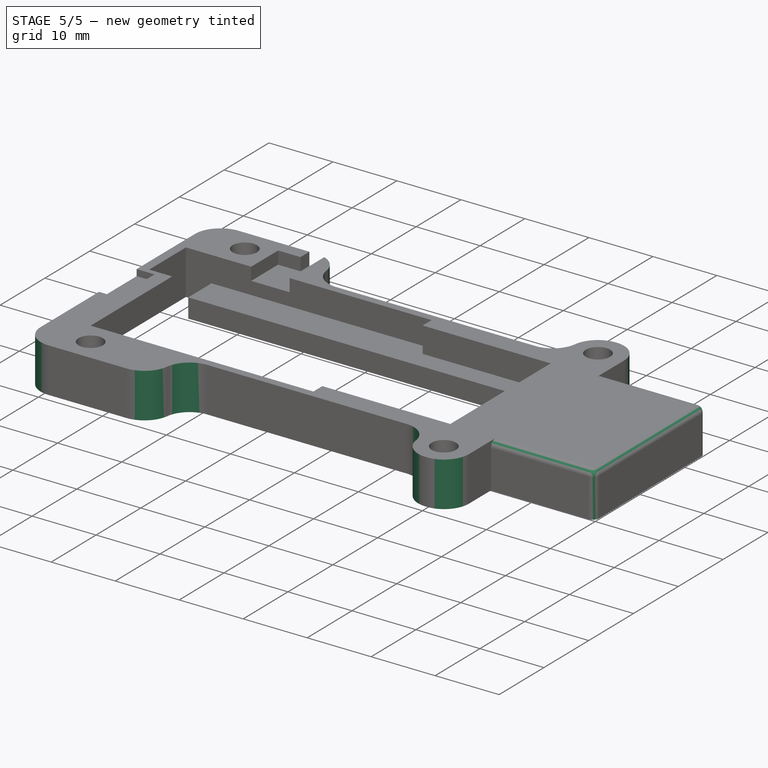
[diagram: stage 5 of 5 — iso view after this stage's code; geometry added in this stage tinted green]
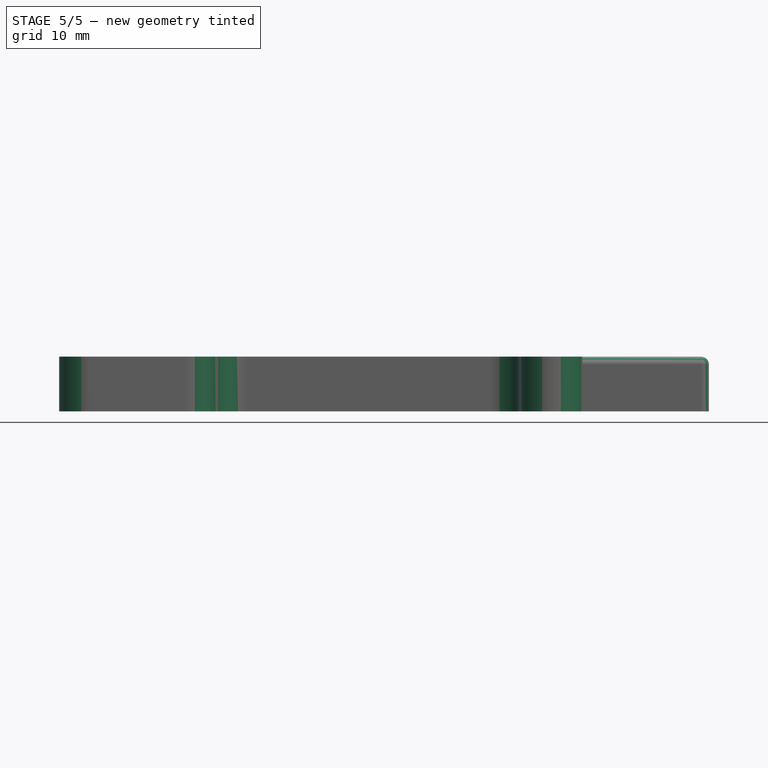
[diagram: stage 5 of 5 — front view after this stage's code; geometry added in this stage tinted green]
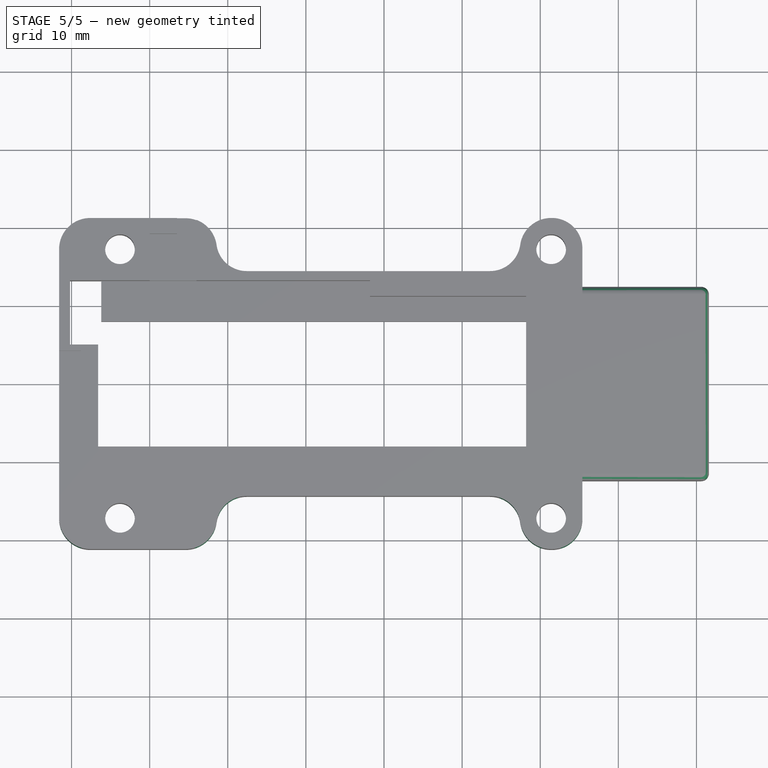
[diagram: stage 5 of 5 — top view after this stage's code; geometry added in this stage tinted green]
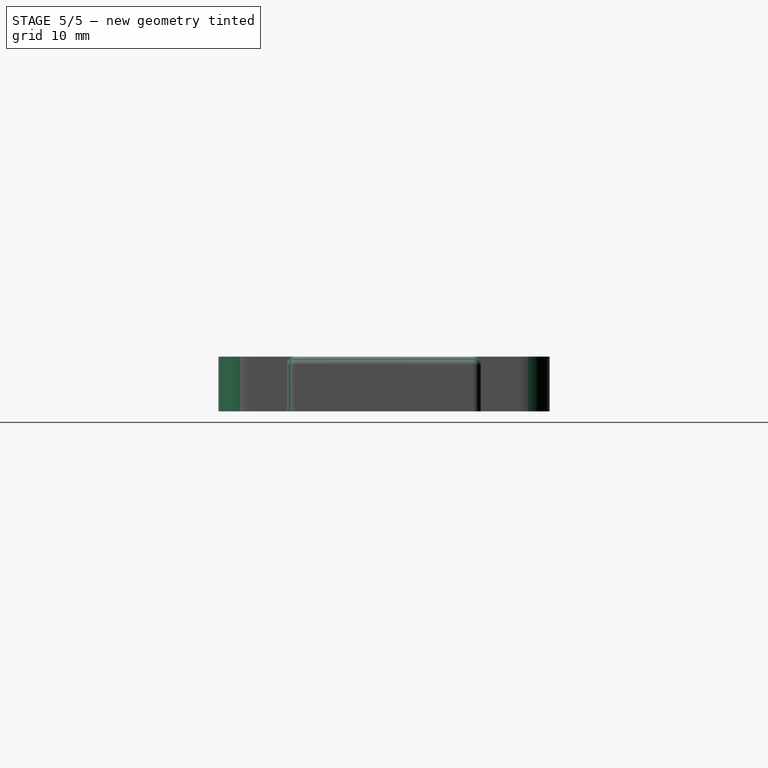
[diagram: stage 5 of 5 — right view after this stage's code; geometry added in this stage tinted green]
FEATURE [PartDesign::Fillet] Fillet
  Base = -> Chamfer001 [Edge66,Edge62,Edge64,Edge94,Edge82,Edge74]
  BaseFeature = -> Chamfer001
  Radius = 4
  SupportTransform = false
  UseAllEdges = false
FEATURE [PartDesign::Fillet] Fillet001
  Base = -> Fillet [Edge85,Edge87,Edge39,Edge44,Edge43,Edge69]
  BaseFeature = -> Fillet
  Radius = 3.9
  SupportTransform = false
  UseAllEdges = false
FEATURE [PartDesign::Fillet] Fillet002
  Base = -> Fillet001 [Edge57,Edge60,Edge61,Edge56,Edge64]
  BaseFeature = -> Fillet001
  Radius = 1
  SupportTransform = false
  UseAllEdges = false
FEATURE [PartDesign::Body] Body
  Group = -> [Sketch,Sketch001,Pad,DatumPlane,Sketch002,Pocket,Sketch003,Pocket001,DatumPlane001,Sketch004,Pocket002,Sketch005,Pocket003,Sketch006,Pocket004,Sketch007,Sketch008,Pocket006,Sketch009,Pocket007,Sketch010,Sketch011,Pocket008,Sketch012,Pocket009,Chamfer,Chamfer001,Fillet,Fillet001,Fillet002]
  Origin = -> Origin
  Tip = -> Fillet002
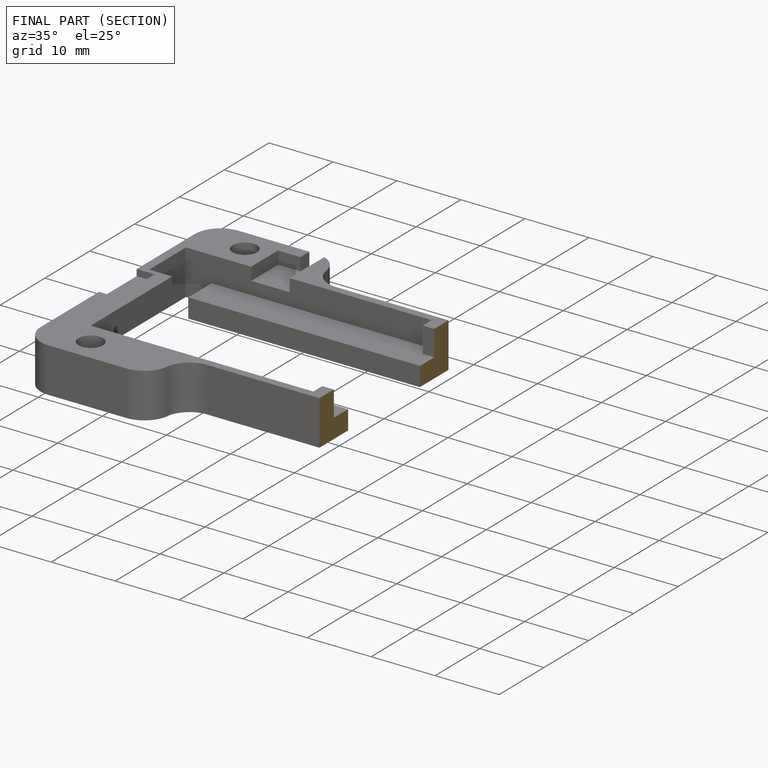
[diagram: finished part — half-section view (interior)]
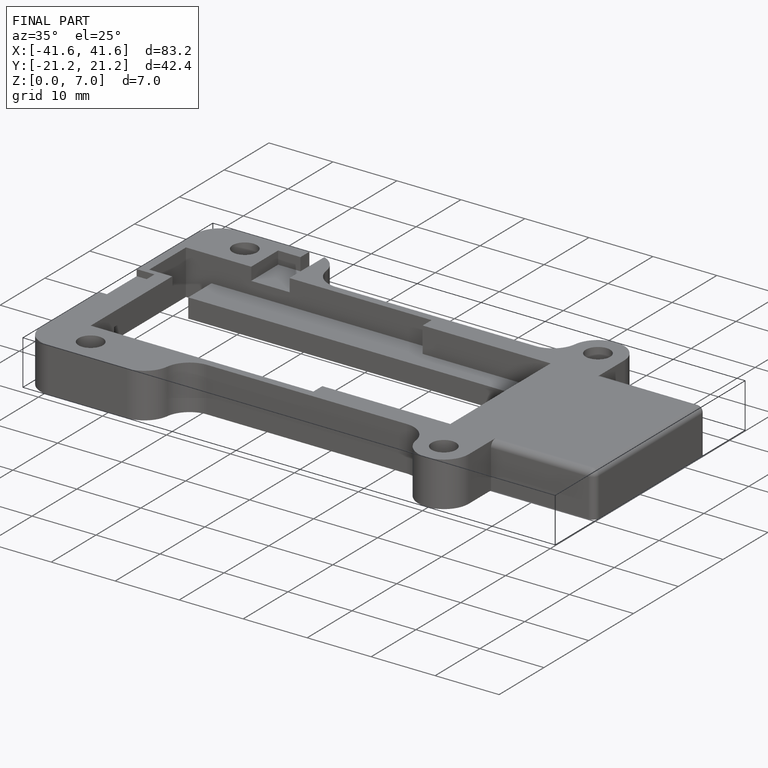
[diagram: finished part — iso view with bounding-box wireframe]
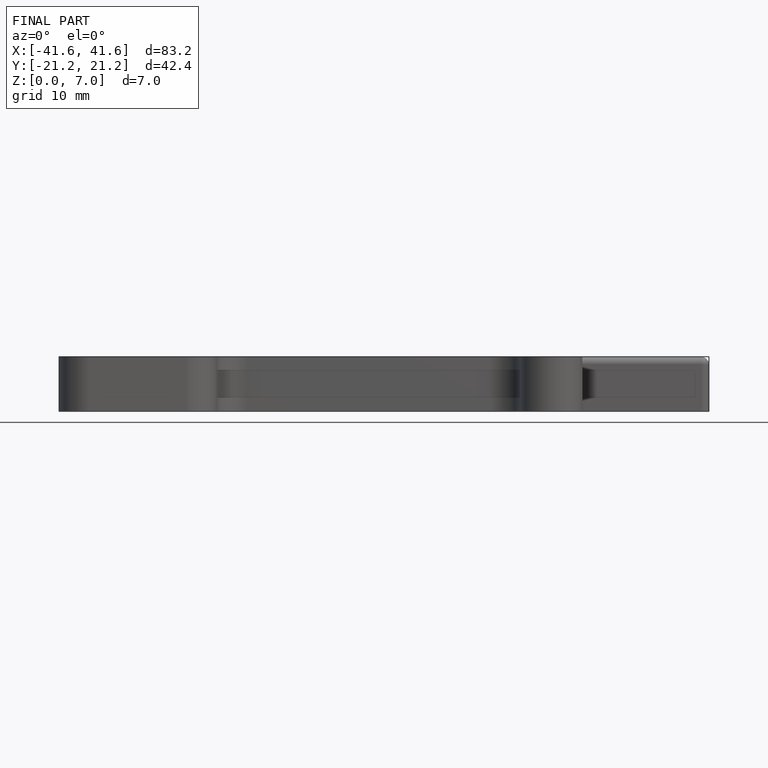
[diagram: finished part — front view with bounding-box wireframe]
